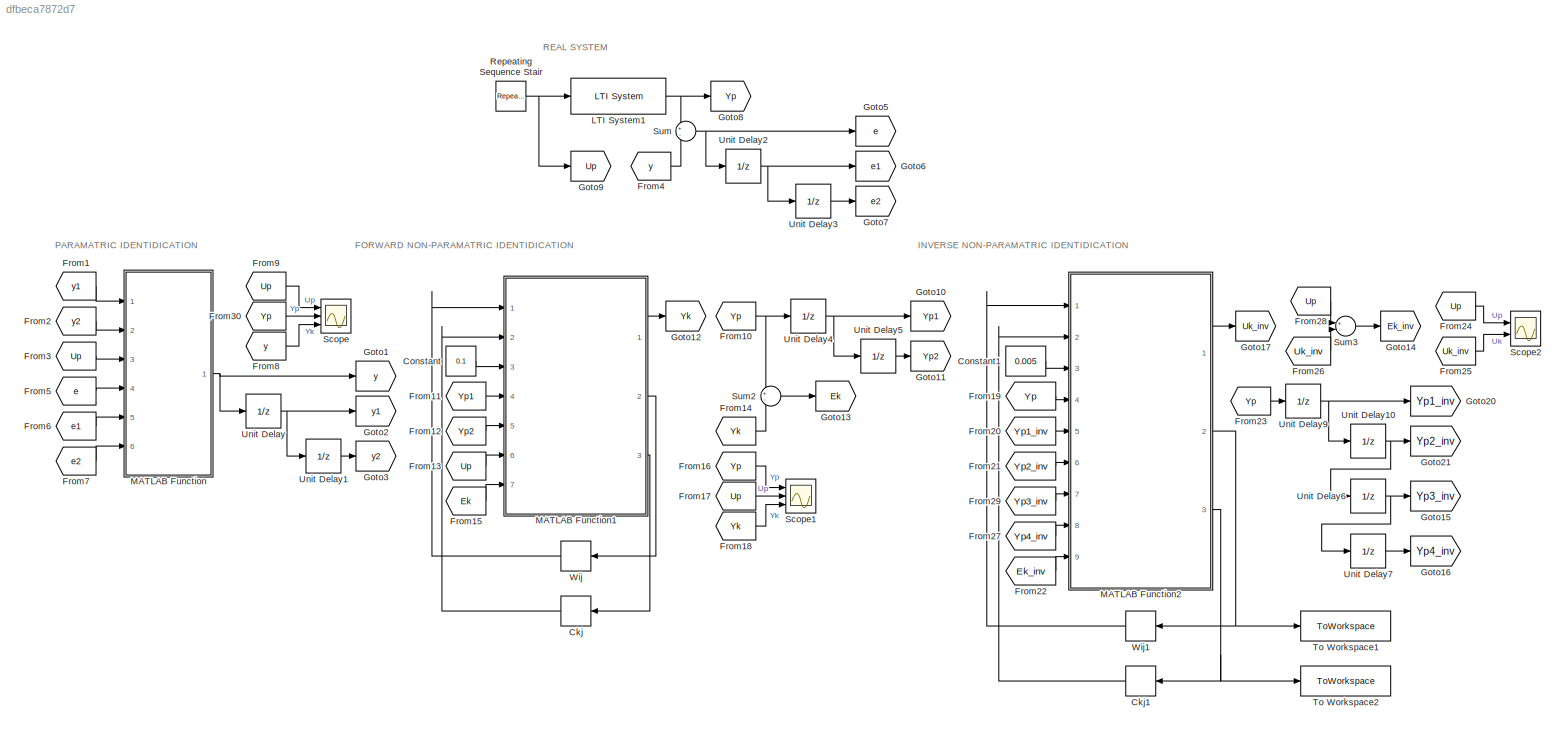
MODEL slx_dfbeca7872d7
KIND model
CONFIG AbsTol = auto
CONFIG EnableMultiTasking = off
CONFIG FixedStep = 0.01
CONFIG MaxStep = auto
CONFIG MinStep = auto
CONFIG RelTol = 1e-3
CONFIG SampleTimeConstraint = Unconstrained
CONFIG Solver = FixedStepAuto
CONFIG SolverName = FixedStepAuto
CONFIG StartTime = 0.0
CONFIG StopTime = 600
BLOCK [Memory] Ckj
  InitialCondition = randn(1,10)
  NameLocation = top
BLOCK [Memory] Ckj1
  InitialCondition = randn(1,20)
  NameLocation = top
BLOCK [Constant] Constant
  Value = 0.1
BLOCK [Constant] Constant1
  Value = 0.005
BLOCK [From] From1
  GotoTag = y1
BLOCK [From] From10
  GotoTag = Yp
BLOCK [From] From11
  GotoTag = Yp1
BLOCK [From] From12
  GotoTag = Yp2
BLOCK [From] From13
  GotoTag = Up
BLOCK [From] From14
  GotoTag = Yk
BLOCK [From] From15
  GotoTag = Ek
BLOCK [From] From16
  GotoTag = Yp
BLOCK [From] From17
  GotoTag = Up
BLOCK [From] From18
  GotoTag = Yk
BLOCK [From] From19
  GotoTag = Yp
BLOCK [From] From2
  GotoTag = y2
BLOCK [From] From20
  GotoTag = Yp1_inv
BLOCK [From] From21
  GotoTag = Yp2_inv
BLOCK [From] From22
  GotoTag = Ek_inv
BLOCK [From] From23
  GotoTag = Yp
BLOCK [From] From24
  GotoTag = Up
BLOCK [From] From25
  GotoTag = Uk_inv
BLOCK [From] From26
  GotoTag = Uk_inv
BLOCK [From] From27
  GotoTag = Yp4_inv
BLOCK [From] From28
  GotoTag = Up
BLOCK [From] From29
  GotoTag = Yp3_inv
BLOCK [From] From3
  GotoTag = Up
BLOCK [From] From30
  GotoTag = Yp
BLOCK [From] From4
  GotoTag = y
BLOCK [From] From5
  GotoTag = e
BLOCK [From] From6
  GotoTag = e1
BLOCK [From] From7
  GotoTag = e2
BLOCK [From] From8
  GotoTag = y
BLOCK [From] From9
  GotoTag = Up
BLOCK [Goto] Goto1
  GotoTag = y
BLOCK [Goto] Goto10
  GotoTag = Yp1
BLOCK [Goto] Goto11
  GotoTag = Yp2
BLOCK [Goto] Goto12
  GotoTag = Yk
BLOCK [Goto] Goto13
  GotoTag = Ek
BLOCK [Goto] Goto14
  GotoTag = Ek_inv
BLOCK [Goto] Goto15
  GotoTag = Yp3_inv
BLOCK [Goto] Goto16
  GotoTag = Yp4_inv
BLOCK [Goto] Goto17
  GotoTag = Uk_inv
BLOCK [Goto] Goto2
  GotoTag = y1
BLOCK [Goto] Goto20
  GotoTag = Yp1_inv
BLOCK [Goto] Goto21
  GotoTag = Yp2_inv
BLOCK [Goto] Goto3
  GotoTag = y2
BLOCK [Goto] Goto5
  GotoTag = e
BLOCK [Goto] Goto6
  GotoTag = e1
BLOCK [Goto] Goto7
  GotoTag = e2
BLOCK [Goto] Goto8
  GotoTag = Yp
BLOCK [Goto] Goto9
  GotoTag = Up
BLOCK [Reference] LTI System1  REF=cstblocks/LTI System
  Ports = [1, 1]
  SourceBlock = cstblocks/LTI System
  SourceProductBaseCode = CT
  SourceType = LTI Block
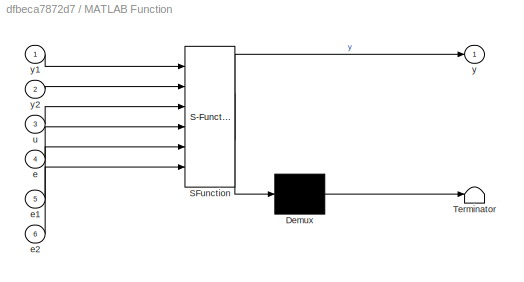
BLOCK [SubSystem] MATLAB Function
  ErrorFcn = Stateflow.Translate.translate
  PermitHierarchicalResolution = ExplicitOnly
  Ports = [6, 1]
  RequestExecContextInheritance = off
  SFBlockType = MATLAB Function
  TreatAsAtomicUnit = on
BLOCK [Demux] MATLAB Function/ Demux 
  Outputs = 1
  Ports = [1, 1]
BLOCK [S-Function] MATLAB Function/ SFunction 
  EnableBusSupport = on
  FunctionName = sf_sfun
  PortCounts = [6 2]
  Ports = [6, 2]
  SFcnIsStateOwnerBlock = off
  SFunctionDeploymentMode = off
  Tag = Stateflow S-Function 2
BLOCK [Terminator] MATLAB Function/ Terminator 
BLOCK [Inport] MATLAB Function/e
  Port = 4
BLOCK [Inport] MATLAB Function/e1
  Port = 5
BLOCK [Inport] MATLAB Function/e2
  Port = 6
BLOCK [Inport] MATLAB Function/u
  Port = 3
BLOCK [Outport] MATLAB Function/y
BLOCK [Inport] MATLAB Function/y1
BLOCK [Inport] MATLAB Function/y2
  Port = 2
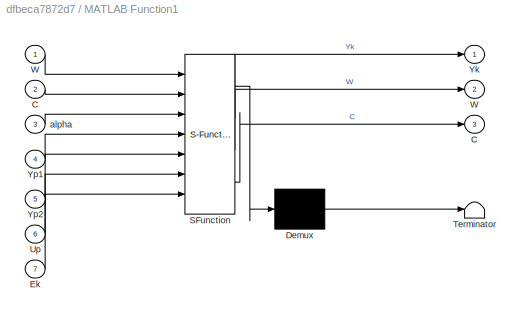
BLOCK [SubSystem] MATLAB Function1
  ErrorFcn = Stateflow.Translate.translate
  PermitHierarchicalResolution = ExplicitOnly
  Ports = [7, 3]
  RequestExecContextInheritance = off
  SFBlockType = MATLAB Function
  TreatAsAtomicUnit = on
BLOCK [Demux] MATLAB Function1/ Demux 
  Outputs = 1
  Ports = [1, 1]
BLOCK [S-Function] MATLAB Function1/ SFunction 
  EnableBusSupport = on
  FunctionName = sf_sfun
  PortCounts = [7 4]
  Ports = [7, 4]
  SFcnIsStateOwnerBlock = off
  SFunctionDeploymentMode = off
  Tag = Stateflow S-Function 1
BLOCK [Terminator] MATLAB Function1/ Terminator 
BLOCK [Outport] MATLAB Function1/C
  Port = 3
BLOCK [Inport] MATLAB Function1/C 
  Port = 2
BLOCK [Inport] MATLAB Function1/Ek
  Port = 7
BLOCK [Inport] MATLAB Function1/Up
  Port = 6
BLOCK [Outport] MATLAB Function1/W
  Port = 2
BLOCK [Inport] MATLAB Function1/W 
BLOCK [Outport] MATLAB Function1/Yk
BLOCK [Inport] MATLAB Function1/Yp1
  Port = 4
BLOCK [Inport] MATLAB Function1/Yp2
  Port = 5
BLOCK [Inport] MATLAB Function1/alpha
  Port = 3
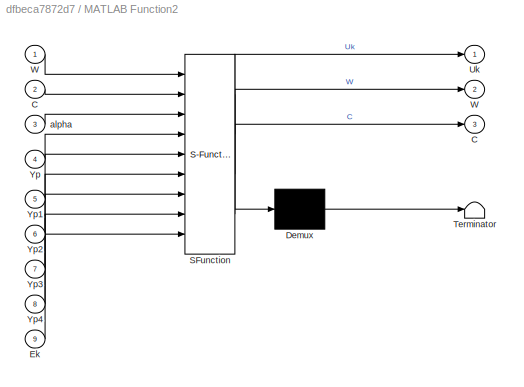
BLOCK [SubSystem] MATLAB Function2
  ErrorFcn = Stateflow.Translate.translate
  PermitHierarchicalResolution = ExplicitOnly
  Ports = [9, 3]
  RequestExecContextInheritance = off
  SFBlockType = MATLAB Function
  TreatAsAtomicUnit = on
BLOCK [Demux] MATLAB Function2/ Demux 
  Outputs = 1
  Ports = [1, 1]
BLOCK [S-Function] MATLAB Function2/ SFunction 
  EnableBusSupport = on
  FunctionName = sf_sfun
  PortCounts = [9 4]
  Ports = [9, 4]
  SFcnIsStateOwnerBlock = off
  SFunctionDeploymentMode = off
  Tag = Stateflow S-Function 3
BLOCK [Terminator] MATLAB Function2/ Terminator 
BLOCK [Outport] MATLAB Function2/C
  Port = 3
BLOCK [Inport] MATLAB Function2/C 
  Port = 2
BLOCK [Inport] MATLAB Function2/Ek
  Port = 9
BLOCK [Outport] MATLAB Function2/Uk
BLOCK [Outport] MATLAB Function2/W
  Port = 2
BLOCK [Inport] MATLAB Function2/W 
BLOCK [Inport] MATLAB Function2/Yp
  Port = 4
BLOCK [Inport] MATLAB Function2/Yp1
  Port = 5
BLOCK [Inport] MATLAB Function2/Yp2
  Port = 6
BLOCK [Inport] MATLAB Function2/Yp3
  Port = 7
BLOCK [Inport] MATLAB Function2/Yp4
  Port = 8
BLOCK [Inport] MATLAB Function2/alpha
  Port = 3
BLOCK [Reference] Repeating Sequence Stair  REF=simulink/Sources/Repeating
Sequence
Stair
  Ports = [0, 1]
  SourceBlock = simulink/Sources/Repeating\nSequence\nStair
  SourceProductBaseCode = SL
  SourceType = Repeating Sequence Stair
BLOCK [Scope] Scope
  Floating = off
  NumInputPorts = 3
  Ports = [3]
  ScopeSpecificationString = Simulink.scopes.TimeScopeBlockCfg('CurrentConfiguration', extmgr.ConfigurationSet(extmgr.Configuration('Core','General UI',true,'FigureColor',[1 1 1]),extmgr.Configuration('Core','Source UI',true),extmgr.Configuration('Sources','WiredSimulink',true),extmgr.Configuration('Visuals','Time Domain',true,'SerializedDisplays',{struct('MinYLimReal','-0.41383','MaxYLimReal','2.94367','YLabelReal','Amplitud...<+1799ch>
BLOCK [Scope] Scope1
  Floating = off
  NumInputPorts = 3
  Ports = [3]
  ScopeSpecificationString = Simulink.scopes.TimeScopeBlockCfg('CurrentConfiguration', extmgr.ConfigurationSet(extmgr.Configuration('Core','General UI',true,'FigureColor',[1 1 1]),extmgr.Configuration('Core','Source UI',true),extmgr.Configuration('Sources','WiredSimulink',true,'DataLoggingVariableName','ScopeData1'),extmgr.Configuration('Visuals','Time Domain',true,'SerializedDisplays',{struct('MinYLimReal','-0.41383','MaxYLi...<+1834ch>
BLOCK [Scope] Scope2
  Floating = off
  NumInputPorts = 2
  Ports = [2]
  ScopeSpecificationString = Simulink.scopes.TimeScopeBlockCfg('CurrentConfiguration', extmgr.ConfigurationSet(extmgr.Configuration('Core','General UI',true,'FigureColor',[1 1 1]),extmgr.Configuration('Core','Source UI',true),extmgr.Configuration('Sources','WiredSimulink',true,'DataLoggingVariableName','ScopeData2'),extmgr.Configuration('Visuals','Time Domain',true,'SerializedDisplays',{struct('MinYLimReal','-0.41383','MaxYLi...<+1829ch>
BLOCK [Sum] Sum
  Inputs = +-
  Ports = [2, 1]
BLOCK [Sum] Sum2
  Inputs = +-
  Ports = [2, 1]
BLOCK [Sum] Sum3
  Inputs = +-
  Ports = [2, 1]
BLOCK [ToWorkspace] To Workspace1
  FixptAsFi = on
  MaxDataPoints = inf
  Ports = [1]
  SampleTime = 600
  VariableName = wei_W
BLOCK [ToWorkspace] To Workspace2
  FixptAsFi = on
  MaxDataPoints = inf
  Ports = [1]
  SampleTime = 600
  VariableName = wei_C
BLOCK [UnitDelay] Unit Delay
  HasFrameUpgradeWarning = on
  SampleTime = -1
BLOCK [UnitDelay] Unit Delay1
  HasFrameUpgradeWarning = on
  SampleTime = -1
BLOCK [UnitDelay] Unit Delay10
  HasFrameUpgradeWarning = on
  SampleTime = -1
BLOCK [UnitDelay] Unit Delay2
  HasFrameUpgradeWarning = on
  SampleTime = -1
BLOCK [UnitDelay] Unit Delay3
  HasFrameUpgradeWarning = on
  SampleTime = -1
BLOCK [UnitDelay] Unit Delay4
  HasFrameUpgradeWarning = on
  SampleTime = -1
BLOCK [UnitDelay] Unit Delay5
  HasFrameUpgradeWarning = on
  SampleTime = -1
BLOCK [UnitDelay] Unit Delay6
  HasFrameUpgradeWarning = on
  SampleTime = -1
BLOCK [UnitDelay] Unit Delay7
  HasFrameUpgradeWarning = on
  SampleTime = -1
BLOCK [UnitDelay] Unit Delay9
  HasFrameUpgradeWarning = on
  SampleTime = -1
BLOCK [Memory] Wij
  InitialCondition = randn(10,3)
  NameLocation = top
BLOCK [Memory] Wij1
  InitialCondition = randn(20,5)
  NameLocation = top
ANNOTATION (root): FORWARD NON-PARAMATRIC IDENTIDICATION
ANNOTATION (root): INVERSE NON-PARAMATRIC IDENTIDICATION
ANNOTATION (root): PARAMATRIC IDENTIDICATION
ANNOTATION (root): REAL SYSTEM
LINE Ckj1:1 -> MATLAB Function2:2
LINE Ckj:1 -> MATLAB Function1:2
LINE Constant1:1 -> MATLAB Function2:3
LINE Constant:1 -> MATLAB Function1:3
NET From10:1 -> Sum2:1, Unit Delay4:1
LINE From11:1 -> MATLAB Function1:4
LINE From12:1 -> MATLAB Function1:5
LINE From13:1 -> MATLAB Function1:6
LINE From14:1 -> Sum2:2
LINE From15:1 -> MATLAB Function1:7
LINE From16:1 -> Scope1:1
LINE From17:1 -> Scope1:2
LINE From18:1 -> Scope1:3
LINE From19:1 -> MATLAB Function2:4
LINE From1:1 -> MATLAB Function:1
LINE From20:1 -> MATLAB Function2:5
LINE From21:1 -> MATLAB Function2:6
LINE From22:1 -> MATLAB Function2:9
LINE From23:1 -> Unit Delay9:1
LINE From24:1 -> Scope2:1
LINE From25:1 -> Scope2:2
LINE From26:1 -> Sum3:2
LINE From27:1 -> MATLAB Function2:8
LINE From28:1 -> Sum3:1
LINE From29:1 -> MATLAB Function2:7
LINE From2:1 -> MATLAB Function:2
LINE From30:1 -> Scope:2
LINE From3:1 -> MATLAB Function:3
LINE From4:1 -> Sum:2
LINE From5:1 -> MATLAB Function:4
LINE From6:1 -> MATLAB Function:5
LINE From7:1 -> MATLAB Function:6
LINE From8:1 -> Scope:3
LINE From9:1 -> Scope:1
NET LTI System1:1 -> Goto8:1, Sum:1
LINE MATLAB Function1:1 -> Goto12:1
LINE MATLAB Function1:2 -> Wij:1
LINE MATLAB Function1:3 -> Ckj:1
LINE MATLAB Function2:1 -> Goto17:1
NET MATLAB Function2:2 -> To Workspace1:1, Wij1:1
NET MATLAB Function2:3 -> Ckj1:1, To Workspace2:1
NET MATLAB Function:1 -> Goto1:1, Unit Delay:1
NET Repeating Sequence Stair:1 -> Goto9:1, LTI System1:1
LINE Sum2:1 -> Goto13:1
LINE Sum3:1 -> Goto14:1
NET Sum:1 -> Goto5:1, Unit Delay2:1
NET Unit Delay10:1 -> Goto21:1, Unit Delay6:1
LINE Unit Delay1:1 -> Goto3:1
NET Unit Delay2:1 -> Goto6:1, Unit Delay3:1
LINE Unit Delay3:1 -> Goto7:1
NET Unit Delay4:1 -> Goto10:1, Unit Delay5:1
LINE Unit Delay5:1 -> Goto11:1
NET Unit Delay6:1 -> Goto15:1, Unit Delay7:1
LINE Unit Delay7:1 -> Goto16:1
NET Unit Delay9:1 -> Goto20:1, Unit Delay10:1
NET Unit Delay:1 -> Goto2:1, Unit Delay1:1
LINE Wij1:1 -> MATLAB Function2:1
LINE Wij:1 -> MATLAB Function1:1
note: NET lines group one-source signal fan-out (src -> all destinations, sorted); 1:1 wires keep LINE
CHART MATLAB Function1 states=1 transitions=1
  STATE_LABEL 'eML_blk_kernel()'
  STATE_LABEL "SCRIPT:\nfunction [Yk, W, C] = fcn(W, C, alpha, Yp1, Yp2, Up, Ek)\n    % Define input vector\n    X = [Yp1 Yp2 Up];\n    \n    % Calculate Aj in the hidden layer\n    Aj = W*X';\n    \n    % Activation function of the hidden layer\n    H = tanh(Aj);\n    \n    % Calculate Ak in the output layer\n    Ak = C'*H;\n    \n    % Activation function of the output layer\n    Yk = Ak;\n    \n    % Update C matrix\n    C = C...<+97ch>"
CHART MATLAB Function states=1 transitions=1
  STATE_LABEL 'eML_blk_kernel()'
  STATE_LABEL 'SCRIPT:\nfunction y = fcn(y1,y2,u,e,e1,e2)\n\na1 = 1.9968;\na2 = -0.9968;\na3 = 1.3544e-05;\na4 = -1.7281;\na5 = 0.7410;\n\ny = a1*y1 + a2*y2 + a3*u + e + a4*e1 + a5*e2;\n'
CHART MATLAB Function2 states=1 transitions=1
  STATE_LABEL 'eML_blk_kernel()'
  STATE_LABEL "SCRIPT:\nfunction [Uk, W, C] = fcn(W, C, alpha, Yp, Yp1, Yp2, Yp3, Yp4, Ek)\n    % Define input vector\n    X = [Yp Yp1 Yp2 Yp3 Yp4];\n    \n    % Calculate Aj in the hidden layer\n    Aj = W*X';\n    \n    % Activation function of the hidden layer\n    H = tanh(Aj);\n    \n    % Calculate Ak in the output layer\n    Ak = C'*H;\n    \n    % Activation function of the output layer\n    Uk = Ak;\n    \n    % Update ...<+115ch>"
CHART  states=0 transitions=0
CHART  states=0 transitions=0
CHART  states=0 transitions=0
